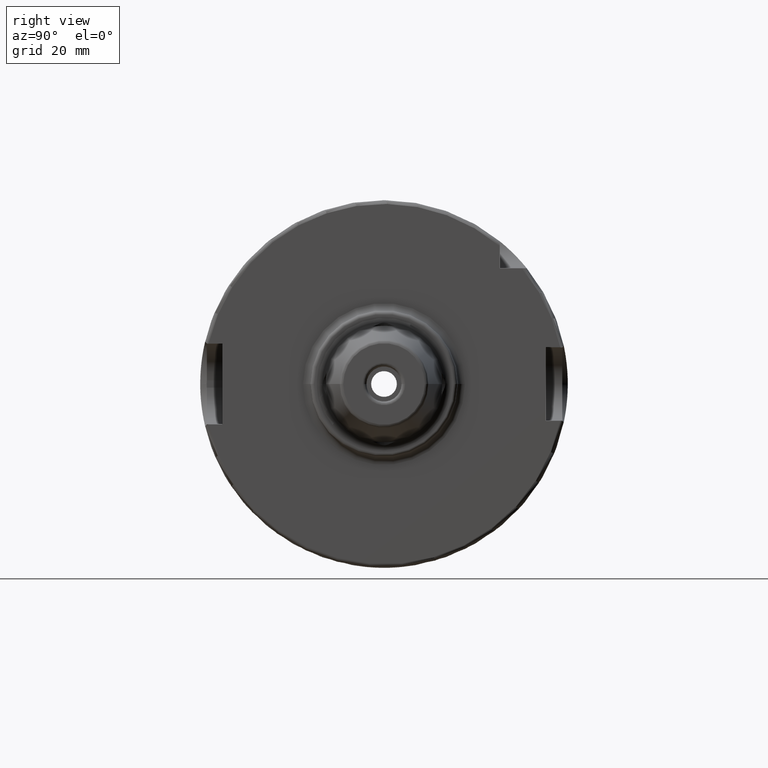
[diagram: clean part render]
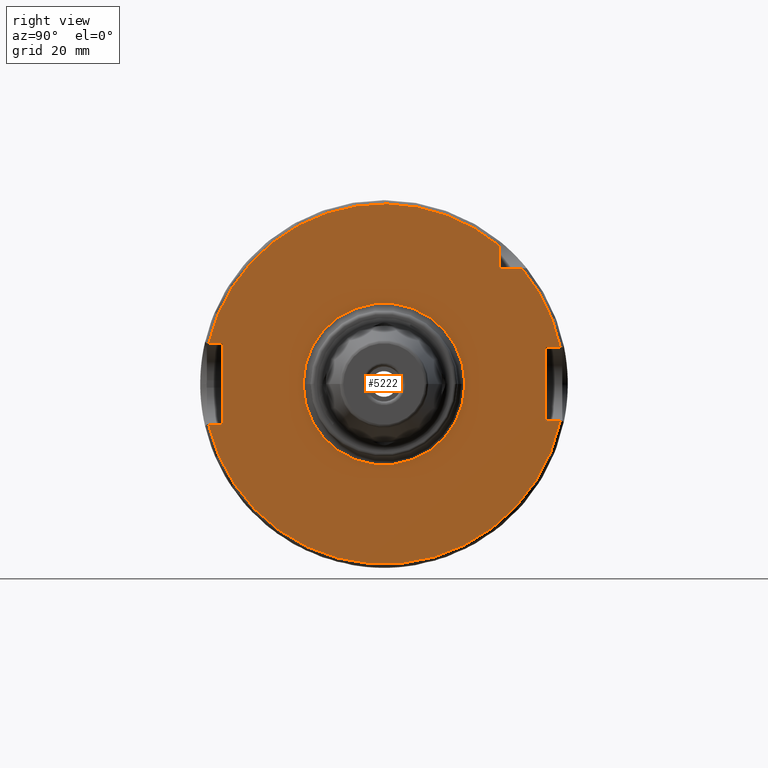
[diagram: same view with one face highlighted and labeled with its STEP entity id]
A machine part, right view. The second image highlights one B-rep face of the part: STEP entity #5222.
In plain terms, the highlighted planar face has unit normal (1, 0, 0).
Its self-contained STEP definition (entity closure, byte-faithful):
#1485=CARTESIAN_POINT('',(2.9E1,0.E0,0.E0));
#1486=DIRECTION('',(1.E0,0.E0,0.E0));
#1487=DIRECTION('',(0.E0,-9.744764396990E-1,-2.244897959184E-1));
#1488=AXIS2_PLACEMENT_3D('',#1485,#1486,#1487);
#1628=CARTESIAN_POINT('',(2.9E1,4.796873982085E1,-1.E1));
#1646=DIRECTION('',(0.E0,1.E0,0.E0));
#1647=VECTOR('',#1646,3.749345545253E0);
#1648=CARTESIAN_POINT('',(2.9E1,-4.774934554525E1,-1.1E1));
#1649=LINE('',#1648,#1647);
#1650=DIRECTION('',(0.E0,0.E0,1.E0));
#1651=VECTOR('',#1650,2.2E1);
#1652=CARTESIAN_POINT('',(2.9E1,-4.4E1,-1.1E1));
#1653=LINE('',#1652,#1651);
#1654=DIRECTION('',(0.E0,1.E0,0.E0));
#1655=VECTOR('',#1654,3.749345545253E0);
#1656=CARTESIAN_POINT('',(2.9E1,-4.774934554525E1,1.1E1));
#1657=LINE('',#1656,#1655);
#1658=DIRECTION('',(0.E0,0.E0,-1.E0));
#1659=VECTOR('',#1658,6.033318531673E0);
#1660=CARTESIAN_POINT('',(2.9E1,3.15E1,3.753331853167E1));
#1661=LINE('',#1660,#1659);
#1662=DIRECTION('',(0.E0,-1.E0,0.E0));
#1663=VECTOR('',#1662,6.033318531673E0);
#1664=CARTESIAN_POINT('',(2.9E1,3.753331853167E1,3.15E1));
#1665=LINE('',#1664,#1663);
#1666=DIRECTION('',(0.E0,-1.E0,0.E0));
#1667=VECTOR('',#1666,3.968739820846E0);
#1668=CARTESIAN_POINT('',(2.9E1,4.796873982085E1,1.E1));
#1669=LINE('',#1668,#1667);
#1670=DIRECTION('',(0.E0,0.E0,-1.E0));
#1671=VECTOR('',#1670,2.E1);
#1672=CARTESIAN_POINT('',(2.9E1,4.4E1,1.E1));
#1673=LINE('',#1672,#1671);
#1674=DIRECTION('',(0.E0,-1.E0,0.E0));
#1675=VECTOR('',#1674,3.968739820846E0);
#1676=CARTESIAN_POINT('',(2.9E1,4.796873982085E1,-1.E1));
#1677=LINE('',#1676,#1675);
#1678=CARTESIAN_POINT('',(2.9E1,0.E0,0.E0));
#1679=DIRECTION('',(1.E0,0.E0,0.E0));
#1680=DIRECTION('',(0.E0,-1.E0,0.E0));
#1681=AXIS2_PLACEMENT_3D('',#1678,#1679,#1680);
#1683=CARTESIAN_POINT('',(2.9E1,0.E0,0.E0));
#1684=DIRECTION('',(1.E0,0.E0,0.E0));
#1685=DIRECTION('',(0.E0,1.E0,0.E0));
#1686=AXIS2_PLACEMENT_3D('',#1683,#1684,#1685);
#1692=CARTESIAN_POINT('',(2.9E1,-4.774934554525E1,-1.1E1));
#1804=CARTESIAN_POINT('',(2.9E1,3.753331853167E1,3.15E1));
#1818=CARTESIAN_POINT('',(2.9E1,0.E0,0.E0));
#1819=DIRECTION('',(1.E0,0.E0,0.E0));
#1820=DIRECTION('',(0.E0,9.789538738948E-1,2.040816326531E-1));
#1821=AXIS2_PLACEMENT_3D('',#1818,#1819,#1820);
#1827=CARTESIAN_POINT('',(2.9E1,4.796873982085E1,1.E1));
#1950=CARTESIAN_POINT('',(2.9E1,3.15E1,3.753331853167E1));
#1966=CARTESIAN_POINT('',(2.9E1,0.E0,0.E0));
#1967=DIRECTION('',(1.E0,0.E0,0.E0));
#1968=DIRECTION('',(0.E0,6.428571428571E-1,7.659860924831E-1));
#1969=AXIS2_PLACEMENT_3D('',#1966,#1967,#1968);
#1971=CARTESIAN_POINT('',(2.9E1,-4.774934554525E1,1.1E1));
#2975=CARTESIAN_POINT('',(2.9E1,4.4E1,1.E1));
#2976=CARTESIAN_POINT('',(2.9E1,4.4E1,-1.E1));
#2977=VERTEX_POINT('',#2975);
#2978=VERTEX_POINT('',#2976);
#2999=CARTESIAN_POINT('',(2.9E1,-4.4E1,-1.1E1));
#3000=CARTESIAN_POINT('',(2.9E1,-4.4E1,1.1E1));
#3001=VERTEX_POINT('',#2999);
#3002=VERTEX_POINT('',#3000);
#3053=CARTESIAN_POINT('',(2.9E1,3.15E1,3.15E1));
#3055=VERTEX_POINT('',#3053);
#3280=VERTEX_POINT('',#1692);
#3281=VERTEX_POINT('',#1628);
#3286=VERTEX_POINT('',#1827);
#3287=VERTEX_POINT('',#1804);
#3290=VERTEX_POINT('',#1950);
#3291=VERTEX_POINT('',#1971);
#3408=CARTESIAN_POINT('',(2.9E1,-2.2E1,0.E0));
#3409=CARTESIAN_POINT('',(2.9E1,2.2E1,0.E0));
#3410=VERTEX_POINT('',#3408);
#3411=VERTEX_POINT('',#3409);
#5189=CARTESIAN_POINT('',(2.9E1,0.E0,0.E0));
#5190=DIRECTION('',(1.E0,0.E0,0.E0));
#5191=DIRECTION('',(0.E0,0.E0,1.E0));
#5192=AXIS2_PLACEMENT_3D('',#5189,#5190,#5191);
#5193=PLANE('',#5192);
#5194=ORIENTED_EDGE('',*,*,#4941,.F.);
#5196=ORIENTED_EDGE('',*,*,#5195,.T.);
#5198=ORIENTED_EDGE('',*,*,#5197,.T.);
#5200=ORIENTED_EDGE('',*,*,#5199,.F.);
#5202=ORIENTED_EDGE('',*,*,#5201,.F.);
#5204=ORIENTED_EDGE('',*,*,#5203,.T.);
#5206=ORIENTED_EDGE('',*,*,#5205,.F.);
#5208=ORIENTED_EDGE('',*,*,#5207,.F.);
#5210=ORIENTED_EDGE('',*,*,#5209,.T.);
#5212=ORIENTED_EDGE('',*,*,#5211,.T.);
#5213=ORIENTED_EDGE('',*,*,#5169,.F.);
#5214=EDGE_LOOP('',(#5194,#5196,#5198,#5200,#5202,#5204,#5206,#5208,#5210,#5212,
#5213));
#5215=FACE_OUTER_BOUND('',#5214,.F.);
#5217=ORIENTED_EDGE('',*,*,#5216,.T.);
#5219=ORIENTED_EDGE('',*,*,#5218,.T.);
#5220=EDGE_LOOP('',(#5217,#5219));
#5221=FACE_BOUND('',#5220,.F.);
#5222=ADVANCED_FACE('',(#5215,#5221),#5193,.T.);
#1489=CIRCLE('',#1488,4.9E1);
#1682=CIRCLE('',#1681,2.2E1);
#1687=CIRCLE('',#1686,2.2E1);
#1822=CIRCLE('',#1821,4.9E1);
#1970=CIRCLE('',#1969,4.9E1);
#4941=EDGE_CURVE('',#3280,#3281,#1489,.T.);
#5169=EDGE_CURVE('',#3281,#2978,#1677,.T.);
#5195=EDGE_CURVE('',#3280,#3001,#1649,.T.);
#5197=EDGE_CURVE('',#3001,#3002,#1653,.T.);
#5199=EDGE_CURVE('',#3291,#3002,#1657,.T.);
#5201=EDGE_CURVE('',#3290,#3291,#1970,.T.);
#5203=EDGE_CURVE('',#3290,#3055,#1661,.T.);
#5205=EDGE_CURVE('',#3287,#3055,#1665,.T.);
#5207=EDGE_CURVE('',#3286,#3287,#1822,.T.);
#5209=EDGE_CURVE('',#3286,#2977,#1669,.T.);
#5211=EDGE_CURVE('',#2977,#2978,#1673,.T.);
#5216=EDGE_CURVE('',#3410,#3411,#1682,.T.);
#5218=EDGE_CURVE('',#3411,#3410,#1687,.T.);